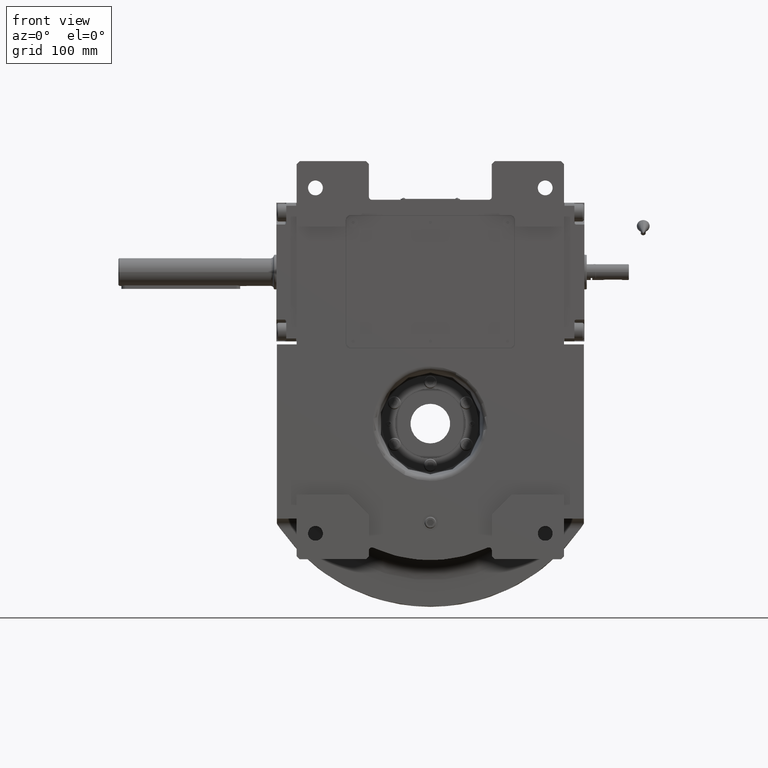
[diagram: clean part render]
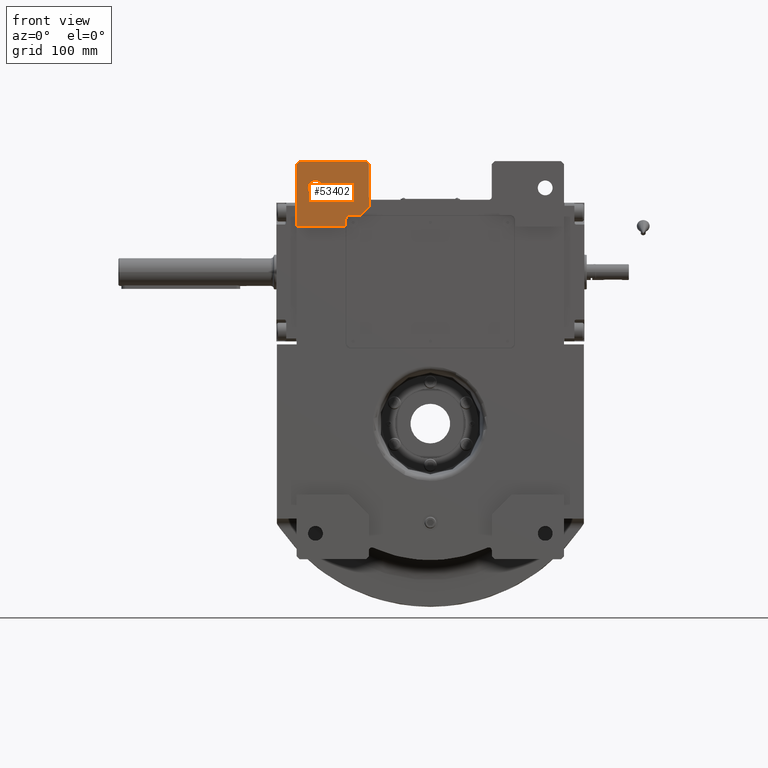
[diagram: same view with one face highlighted and labeled with its STEP entity id]
A machine part, front view. The second image highlights one B-rep face of the part: STEP entity #53402.
In plain terms, the highlighted planar face has unit normal (0, -1, 0).
Its self-contained STEP definition (entity closure, byte-faithful):
#1715 = CARTESIAN_POINT ( 'NONE',  ( -132.0000000000000000, -80.00000000000000000, 265.0000000000000000 ) ) ;
#1717 = EDGE_CURVE ( 'NONE', #25626, #15010, #56681, .T. ) ;
#2455 = CIRCLE ( 'NONE', #58363, 5.000000000000004441 ) ;
#2573 = VECTOR ( 'NONE', #61811, 1000.000000000000000 ) ;
#3129 = LINE ( 'NONE', #39286, #25807 ) ;
#4109 = LINE ( 'NONE', #25840, #66309 ) ;
#4340 = LINE ( 'NONE', #4685, #69934 ) ;
#4685 = CARTESIAN_POINT ( 'NONE',  ( -62.00000000000000000, -80.00000000000000000, 262.0000000000000000 ) ) ;
#6150 = DIRECTION ( 'NONE',  ( -1.000000000000000000, 0.000000000000000000, 0.000000000000000000 ) ) ;
#6364 = VERTEX_POINT ( 'NONE', #1715 ) ;
#6849 = CARTESIAN_POINT ( 'NONE',  ( 0.000000000000000000, -80.00000000000000000, 0.000000000000000000 ) ) ;
#6927 = VERTEX_POINT ( 'NONE', #63598 ) ;
#7437 = ORIENTED_EDGE ( 'NONE', *, *, #35348, .T. ) ;
#7662 = ORIENTED_EDGE ( 'NONE', *, *, #16416, .T. ) ;
#8376 = VECTOR ( 'NONE', #30437, 1000.000000000000000 ) ;
#8604 = CARTESIAN_POINT ( 'NONE',  ( -123.5000000000000000, -80.00000000000000000, 238.0000000000000000 ) ) ;
#9432 = VECTOR ( 'NONE', #15811, 1000.000000000000000 ) ;
#10120 = CARTESIAN_POINT ( 'NONE',  ( -70.50000000000000000, -80.00000000000000000, 210.5000000000000000 ) ) ;
#10167 = EDGE_CURVE ( 'NONE', #35252, #32978, #49502, .T. ) ;
#10494 = EDGE_CURVE ( 'NONE', #6927, #52940, #56103, .T. ) ;
#11161 = EDGE_LOOP ( 'NONE', ( #7437, #51217 ) ) ;
#11321 = DIRECTION ( 'NONE',  ( -1.000000000000000000, 0.000000000000000000, 0.000000000000000000 ) ) ;
#11456 = CARTESIAN_POINT ( 'NONE',  ( -65.00000000000000000, -80.00000000000000000, 265.0000000000000000 ) ) ;
#11494 = PLANE ( 'NONE',  #34331 ) ;
#11955 = DIRECTION ( 'NONE',  ( 0.000000000000000000, 1.000000000000000000, 0.000000000000000000 ) ) ;
#11993 = EDGE_CURVE ( 'NONE', #52940, #44621, #60853, .T. ) ;
#12047 = DIRECTION ( 'NONE',  ( 0.000000000000000000, 0.000000000000000000, -1.000000000000000000 ) ) ;
#12341 = ORIENTED_EDGE ( 'NONE', *, *, #10494, .T. ) ;
#12431 = CARTESIAN_POINT ( 'NONE',  ( -85.50000000000000000, -80.00000000000000000, 199.0000000000000000 ) ) ;
#14084 = DIRECTION ( 'NONE',  ( -0.7071067811865474617, 0.000000000000000000, -0.7071067811865474617 ) ) ;
#15010 = VERTEX_POINT ( 'NONE', #55490 ) ;
#15811 = DIRECTION ( 'NONE',  ( -1.000000000000000000, 0.000000000000000000, 0.000000000000000000 ) ) ;
#16191 = DIRECTION ( 'NONE',  ( 1.000000000000000000, 0.000000000000000000, 0.000000000000000000 ) ) ;
#16416 = EDGE_CURVE ( 'NONE', #32978, #41127, #4109, .T. ) ;
#19227 = VERTEX_POINT ( 'NONE', #27208 ) ;
#20100 = CARTESIAN_POINT ( 'NONE',  ( -80.50000000000000000, -80.00000000000000000, 210.5000000000000000 ) ) ;
#21018 = ORIENTED_EDGE ( 'NONE', *, *, #28081, .F. ) ;
#23142 = ORIENTED_EDGE ( 'NONE', *, *, #46922, .F. ) ;
#25148 = ORIENTED_EDGE ( 'NONE', *, *, #42066, .T. ) ;
#25626 = VERTEX_POINT ( 'NONE', #8604 ) ;
#25807 = VECTOR ( 'NONE', #62355, 1000.000000000000000 ) ;
#25840 = CARTESIAN_POINT ( 'NONE',  ( -135.0000000000000000, -80.00000000000000000, 199.0000000000000000 ) ) ;
#27208 = CARTESIAN_POINT ( 'NONE',  ( -85.50000000000000000, -80.00000000000000000, 205.5000000000000000 ) ) ;
#27500 = ORIENTED_EDGE ( 'NONE', *, *, #38585, .T. ) ;
#28081 = EDGE_CURVE ( 'NONE', #6927, #34065, #42235, .T. ) ;
#28573 = FACE_BOUND ( 'NONE', #11161, .T. ) ;
#28629 = ORIENTED_EDGE ( 'NONE', *, *, #11993, .T. ) ;
#29303 = CARTESIAN_POINT ( 'NONE',  ( -70.50000000000000000, -80.00000000000000000, 210.5000000000000000 ) ) ;
#30437 = DIRECTION ( 'NONE',  ( -1.000000000000000000, 0.000000000000000000, 0.000000000000000000 ) ) ;
#32978 = VERTEX_POINT ( 'NONE', #45256 ) ;
#33497 = DIRECTION ( 'NONE',  ( 2.775557561562888984E-15, 0.000000000000000000, 1.000000000000000000 ) ) ;
#33693 = CARTESIAN_POINT ( 'NONE',  ( -116.0000000000000000, -80.00000000000000000, 238.0000000000000000 ) ) ;
#34065 = VERTEX_POINT ( 'NONE', #20100 ) ;
#34331 = AXIS2_PLACEMENT_3D ( 'NONE', #6849, #66423, #6150 ) ;
#35252 = VERTEX_POINT ( 'NONE', #59093 ) ;
#35348 = EDGE_CURVE ( 'NONE', #15010, #25626, #49906, .T. ) ;
#38585 = EDGE_CURVE ( 'NONE', #6364, #35252, #46552, .T. ) ;
#38861 = CARTESIAN_POINT ( 'NONE',  ( -80.50000000000000000, -80.00000000000000000, 205.5000000000000000 ) ) ;
#39286 = CARTESIAN_POINT ( 'NONE',  ( -85.50000000000000000, -80.00000000000000000, 205.5000000000000000 ) ) ;
#39785 = DIRECTION ( 'NONE',  ( 0.000000000000000000, 0.000000000000000000, 1.000000000000000000 ) ) ;
#40059 = CARTESIAN_POINT ( 'NONE',  ( -62.00000000000000000, -80.00000000000000000, 262.0000000000000000 ) ) ;
#41127 = VERTEX_POINT ( 'NONE', #12431 ) ;
#41380 = EDGE_LOOP ( 'NONE', ( #55934, #27500, #50758, #7662, #23142, #67208, #21018, #12341, #28629, #25148 ) ) ;
#41469 = VECTOR ( 'NONE', #39785, 1000.000000000000000 ) ;
#42066 = EDGE_CURVE ( 'NONE', #44621, #44910, #4340, .T. ) ;
#42235 = LINE ( 'NONE', #10120, #9432 ) ;
#43785 = CARTESIAN_POINT ( 'NONE',  ( -62.00000000000000000, -80.00000000000000000, 219.0000000000000000 ) ) ;
#44417 = DIRECTION ( 'NONE',  ( 1.000000000000000000, 0.000000000000000000, 0.000000000000000000 ) ) ;
#44621 = VERTEX_POINT ( 'NONE', #40059 ) ;
#44684 = VECTOR ( 'NONE', #14084, 1000.000000000000114 ) ;
#44866 = CARTESIAN_POINT ( 'NONE',  ( -135.0000000000000000, -80.00000000000000000, 262.0000000000000000 ) ) ;
#44910 = VERTEX_POINT ( 'NONE', #11456 ) ;
#45256 = CARTESIAN_POINT ( 'NONE',  ( -135.0000000000000000, -80.00000000000000000, 199.0000000000000000 ) ) ;
#46552 = LINE ( 'NONE', #62960, #44684 ) ;
#46922 = EDGE_CURVE ( 'NONE', #19227, #41127, #3129, .T. ) ;
#49490 = DIRECTION ( 'NONE',  ( 0.000000000000000000, 1.000000000000000000, 0.000000000000000000 ) ) ;
#49502 = LINE ( 'NONE', #44866, #57235 ) ;
#49906 = CIRCLE ( 'NONE', #68126, 7.499999999999992895 ) ;
#50758 = ORIENTED_EDGE ( 'NONE', *, *, #10167, .T. ) ;
#50963 = AXIS2_PLACEMENT_3D ( 'NONE', #65549, #49490, #11321 ) ;
#51217 = ORIENTED_EDGE ( 'NONE', *, *, #1717, .T. ) ;
#52940 = VERTEX_POINT ( 'NONE', #43785 ) ;
#53402 = ADVANCED_FACE ( 'NONE', ( #28573, #66072 ), #11494, .T. ) ;
#54035 = EDGE_CURVE ( 'NONE', #34065, #19227, #2455, .T. ) ;
#54244 = DIRECTION ( 'NONE',  ( -0.7071067811865474617, 0.000000000000000000, 0.7071067811865474617 ) ) ;
#55490 = CARTESIAN_POINT ( 'NONE',  ( -108.5000000000000000, -80.00000000000000000, 238.0000000000000000 ) ) ;
#55845 = CARTESIAN_POINT ( 'NONE',  ( -62.00000000000000000, -80.00000000000000000, 219.0000000000000000 ) ) ;
#55897 = EDGE_CURVE ( 'NONE', #44910, #6364, #68272, .T. ) ;
#55934 = ORIENTED_EDGE ( 'NONE', *, *, #55897, .T. ) ;
#56103 = LINE ( 'NONE', #29303, #2573 ) ;
#56681 = CIRCLE ( 'NONE', #50963, 7.499999999999992895 ) ;
#57235 = VECTOR ( 'NONE', #12047, 1000.000000000000000 ) ;
#58363 = AXIS2_PLACEMENT_3D ( 'NONE', #38861, #60633, #33497 ) ;
#59093 = CARTESIAN_POINT ( 'NONE',  ( -135.0000000000000000, -80.00000000000000000, 262.0000000000000000 ) ) ;
#60633 = DIRECTION ( 'NONE',  ( 0.000000000000000000, -1.000000000000000000, 0.000000000000000000 ) ) ;
#60853 = LINE ( 'NONE', #55845, #41469 ) ;
#61811 = DIRECTION ( 'NONE',  ( 0.7071067811865480168, 0.000000000000000000, 0.7071067811865470176 ) ) ;
#62355 = DIRECTION ( 'NONE',  ( 0.000000000000000000, 0.000000000000000000, -1.000000000000000000 ) ) ;
#62960 = CARTESIAN_POINT ( 'NONE',  ( -132.0000000000000000, -80.00000000000000000, 265.0000000000000000 ) ) ;
#63598 = CARTESIAN_POINT ( 'NONE',  ( -70.50000000000000000, -80.00000000000000000, 210.5000000000000000 ) ) ;
#65549 = CARTESIAN_POINT ( 'NONE',  ( -116.0000000000000000, -80.00000000000000000, 238.0000000000000000 ) ) ;
#66072 = FACE_OUTER_BOUND ( 'NONE', #41380, .T. ) ;
#66309 = VECTOR ( 'NONE', #16191, 1000.000000000000000 ) ;
#66423 = DIRECTION ( 'NONE',  ( 0.000000000000000000, -1.000000000000000000, 0.000000000000000000 ) ) ;
#67208 = ORIENTED_EDGE ( 'NONE', *, *, #54035, .F. ) ;
#68126 = AXIS2_PLACEMENT_3D ( 'NONE', #33693, #11955, #44417 ) ;
#68272 = LINE ( 'NONE', #68632, #8376 ) ;
#68632 = CARTESIAN_POINT ( 'NONE',  ( -65.00000000000000000, -80.00000000000000000, 265.0000000000000000 ) ) ;
#69934 = VECTOR ( 'NONE', #54244, 1000.000000000000114 ) ;